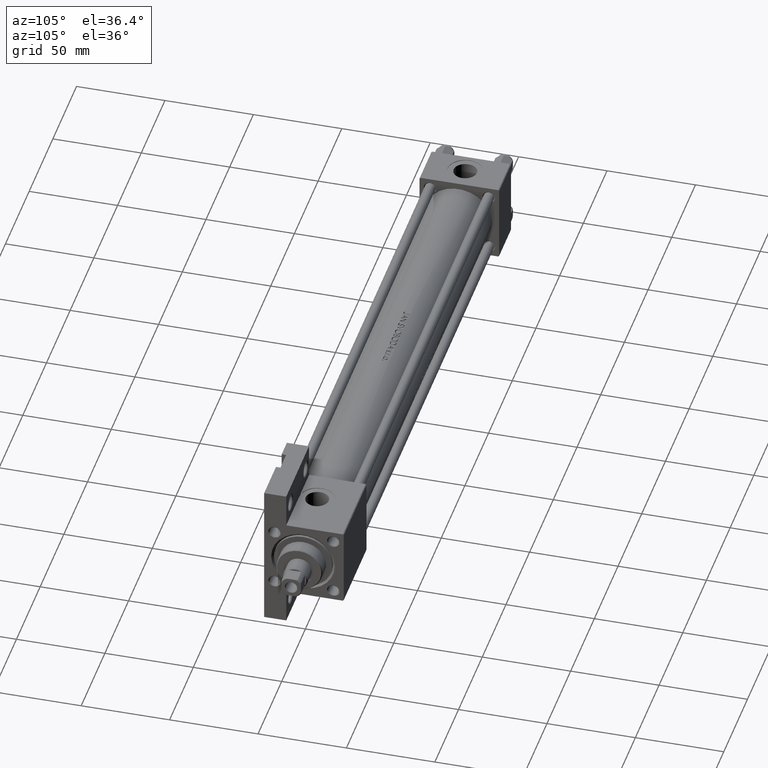
[diagram: clean part render]
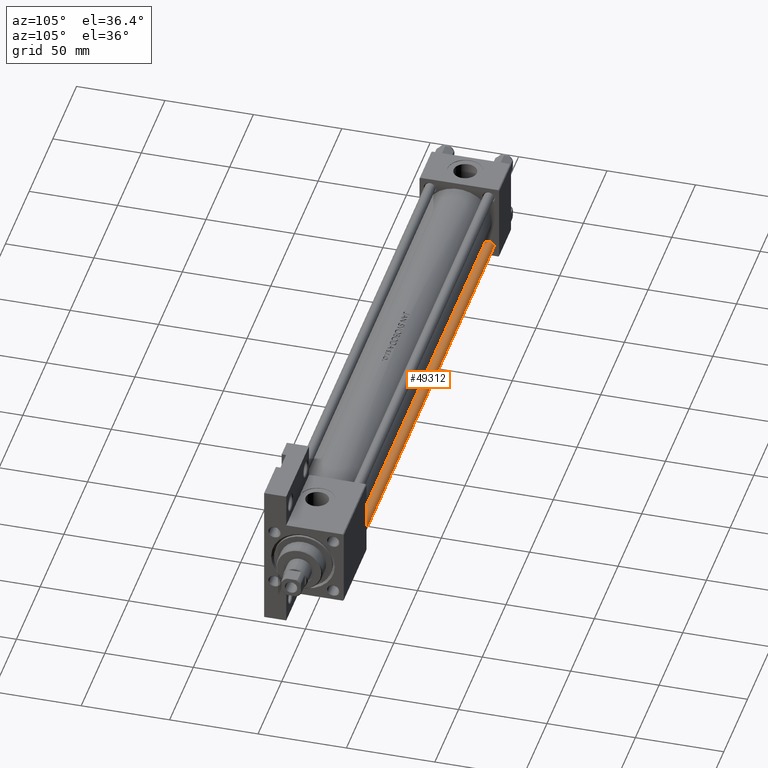
[diagram: same view with one face highlighted and labeled with its STEP entity id]
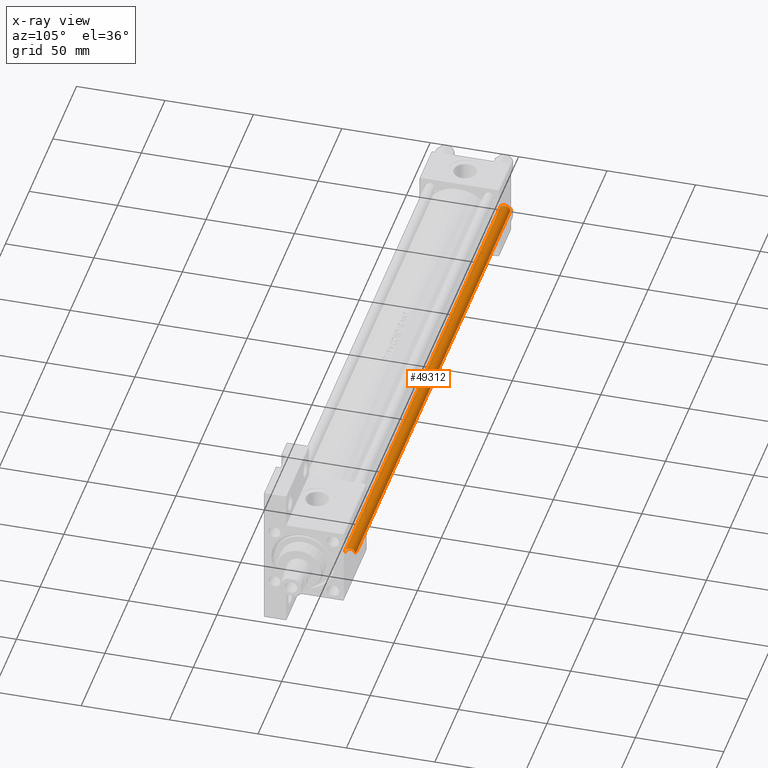
[diagram: x-ray of the same camera — body ghosted, the highlighted face saturated]
A machine part, auxiliary view. The second image highlights one B-rep face of the part: STEP entity #49312.
The next image is the same camera in x-ray: the body ghosted, the highlighted face saturated — about 0% of this face is hidden behind the body in this view.
In plain terms, the highlighted cylindrical surface (edge-blend (fillet) strip) has radius 3 mm, axis along (-1, -0, 0).
Its self-contained STEP definition (entity closure, byte-faithful):
#114 = VERTEX_POINT ( 'NONE', #1191 ) ;
#123 = VERTEX_POINT ( 'NONE', #42304 ) ;
#1191 = CARTESIAN_POINT ( 'NONE',  ( 3.000000000000000444, 3.673940397442060361E-16, 327.5000000000000000 ) ) ;
#3058 = CYLINDRICAL_SURFACE ( 'NONE', #22577, 3.000000000000000444 ) ;
#5832 = FACE_OUTER_BOUND ( 'NONE', #16515, .T. ) ;
#6092 = CARTESIAN_POINT ( 'NONE',  ( 0.000000000000000000, 0.000000000000000000, 328.0000000000000000 ) ) ;
#7838 = EDGE_CURVE ( 'NONE', #10111, #123, #16999, .T. ) ;
#9525 = EDGE_CURVE ( 'NONE', #43402, #123, #36363, .T. ) ;
#10111 = VERTEX_POINT ( 'NONE', #35429 ) ;
#10365 = DIRECTION ( 'NONE',  ( -0.000000000000000000, -0.000000000000000000, -1.000000000000000000 ) ) ;
#12679 = DIRECTION ( 'NONE',  ( -0.000000000000000000, -0.000000000000000000, 1.000000000000000000 ) ) ;
#12839 = DIRECTION ( 'NONE',  ( 0.000000000000000000, 0.000000000000000000, -1.000000000000000000 ) ) ;
#14386 = EDGE_CURVE ( 'NONE', #43402, #114, #35533, .T. ) ;
#14759 = VECTOR ( 'NONE', #32560, 1000.000000000000000 ) ;
#15236 = EDGE_CURVE ( 'NONE', #114, #10111, #48391, .T. ) ;
#16299 = AXIS2_PLACEMENT_3D ( 'NONE', #20889, #12839, #43710 ) ;
#16515 = EDGE_LOOP ( 'NONE', ( #47816, #43032, #26283, #20565 ) ) ;
#16999 = CIRCLE ( 'NONE', #49099, 3.000000000000000444 ) ;
#17770 = CARTESIAN_POINT ( 'NONE',  ( 3.000000000000000444, 3.673940397442060361E-16, 328.0000000000000000 ) ) ;
#20565 = ORIENTED_EDGE ( 'NONE', *, *, #9525, .F. ) ;
#20889 = CARTESIAN_POINT ( 'NONE',  ( 0.000000000000000000, 0.000000000000000000, 327.5000000000000000 ) ) ;
#22577 = AXIS2_PLACEMENT_3D ( 'NONE', #6092, #10365, #25691 ) ;
#25691 = DIRECTION ( 'NONE',  ( -1.000000000000000000, 0.000000000000000000, 0.000000000000000000 ) ) ;
#26283 = ORIENTED_EDGE ( 'NONE', *, *, #7838, .T. ) ;
#31516 = CARTESIAN_POINT ( 'NONE',  ( 0.000000000000000000, 0.000000000000000000, 0.5000000000000559552 ) ) ;
#32344 = DIRECTION ( 'NONE',  ( -0.000000000000000000, -0.000000000000000000, -1.000000000000000000 ) ) ;
#32560 = DIRECTION ( 'NONE',  ( -0.000000000000000000, -0.000000000000000000, -1.000000000000000000 ) ) ;
#35429 = CARTESIAN_POINT ( 'NONE',  ( 3.000000000000000444, 3.673940397442060361E-16, 0.5000000000000559552 ) ) ;
#35533 = CIRCLE ( 'NONE', #16299, 3.000000000000000444 ) ;
#36281 = CARTESIAN_POINT ( 'NONE',  ( -3.000000000000000444, 0.000000000000000000, 327.5000000000000000 ) ) ;
#36363 = LINE ( 'NONE', #39857, #37126 ) ;
#37126 = VECTOR ( 'NONE', #32344, 1000.000000000000000 ) ;
#39857 = CARTESIAN_POINT ( 'NONE',  ( -3.000000000000000444, 0.000000000000000000, 328.0000000000000000 ) ) ;
#42304 = CARTESIAN_POINT ( 'NONE',  ( -3.000000000000000444, 0.000000000000000000, 0.5000000000000559552 ) ) ;
#43032 = ORIENTED_EDGE ( 'NONE', *, *, #15236, .T. ) ;
#43301 = DIRECTION ( 'NONE',  ( 1.000000000000000000, 0.000000000000000000, 0.000000000000000000 ) ) ;
#43402 = VERTEX_POINT ( 'NONE', #36281 ) ;
#43710 = DIRECTION ( 'NONE',  ( 1.000000000000000000, 0.000000000000000000, 0.000000000000000000 ) ) ;
#47816 = ORIENTED_EDGE ( 'NONE', *, *, #14386, .T. ) ;
#48391 = LINE ( 'NONE', #17770, #14759 ) ;
#49099 = AXIS2_PLACEMENT_3D ( 'NONE', #31516, #12679, #43301 ) ;
#49312 = ADVANCED_FACE ( 'NONE', ( #5832 ), #3058, .T. ) ;